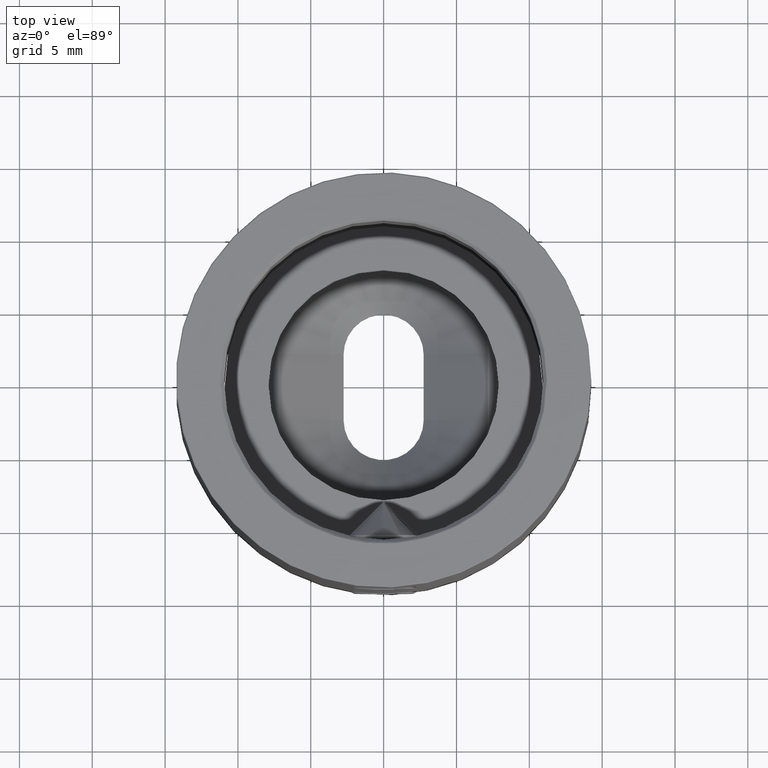
[diagram: clean part render]
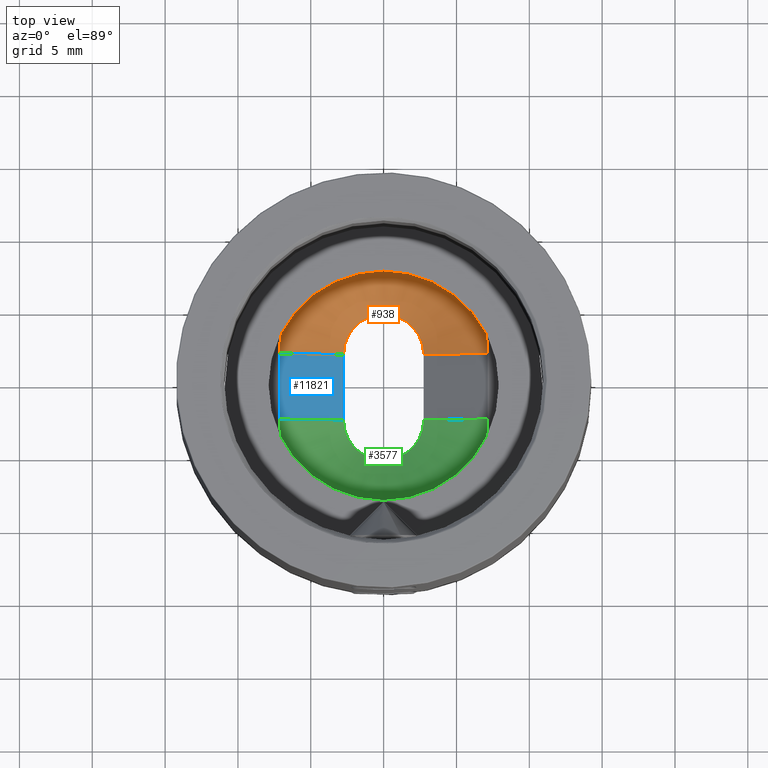
[diagram: same view with three faces highlighted in distinct colors, each labeled with its STEP entity id]
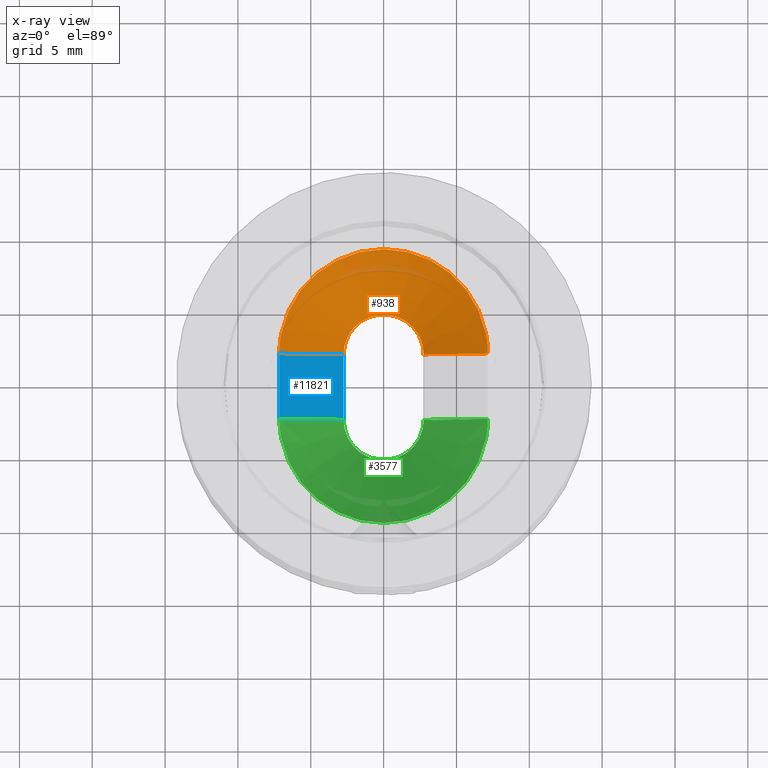
[diagram: x-ray of the same camera — body ghosted, the three highlighted faces saturated]
A machine part, top view with three faces highlighted in distinct colors.
The next image is the same camera in x-ray (body ghosted, the three faces saturated) — at least one of them is partly hidden behind the body in this view.
Their STEP definitions:

[orange] entity #938 — the highlighted conical surface has half-angle 45 deg.
#111 = FACE_OUTER_BOUND ( 'NONE', #14790, .T. ) ;
#628 = CIRCLE ( 'NONE', #9543, 7.150000000000000355 ) ;
#938 = ADVANCED_FACE ( 'NONE', ( #111 ), #7051, .F. ) ;
#1121 = CARTESIAN_POINT ( 'NONE',  ( -3.659182332138577958E-16, 2.250000000000000444, 6.100000000000000533 ) ) ;
#1178 = ORIENTED_EDGE ( 'NONE', *, *, #13628, .T. ) ;
#1235 = DIRECTION ( 'NONE',  ( -0.000000000000000000, -0.000000000000000000, 1.000000000000000000 ) ) ;
#1693 = CIRCLE ( 'NONE', #8093, 7.150000000000000355 ) ;
#1723 = ORIENTED_EDGE ( 'NONE', *, *, #12745, .F. ) ;
#1754 = DIRECTION ( 'NONE',  ( 1.000000000000000000, 0.000000000000000000, 0.000000000000000000 ) ) ;
#1837 = VERTEX_POINT ( 'NONE', #14215 ) ;
#2367 = DIRECTION ( 'NONE',  ( -0.000000000000000000, -0.000000000000000000, 1.000000000000000000 ) ) ;
#2505 = VECTOR ( 'NONE', #8933, 1000.000000000000000 ) ;
#3434 = CARTESIAN_POINT ( 'NONE',  ( -7.014904766915149636, 3.633333333333333748, 6.100000000000000533 ) ) ;
#3438 = CARTESIAN_POINT ( 'NONE',  ( -3.659182332138577958E-16, 2.250000000000000444, 6.100000000000000533 ) ) ;
#3969 = VERTEX_POINT ( 'NONE', #6099 ) ;
#4426 = LINE ( 'NONE', #11788, #10954 ) ;
#5218 = CARTESIAN_POINT ( 'NONE',  ( -3.659182332138577958E-16, 2.250000000000000444, 6.100000000000000533 ) ) ;
#5816 = DIRECTION ( 'NONE',  ( 1.000000000000000000, 0.000000000000000000, 0.000000000000000000 ) ) ;
#5975 = ORIENTED_EDGE ( 'NONE', *, *, #10716, .F. ) ;
#6099 = CARTESIAN_POINT ( 'NONE',  ( 7.014904766915149636, 3.633333333333336412, 6.100000000000000533 ) ) ;
#6534 = DIRECTION ( 'NONE',  ( -0.000000000000000000, -0.000000000000000000, 1.000000000000000000 ) ) ;
#6740 = DIRECTION ( 'NONE',  ( 1.000000000000000000, 0.000000000000000000, 0.000000000000000000 ) ) ;
#6809 = AXIS2_PLACEMENT_3D ( 'NONE', #5218, #6534, #1754 ) ;
#7051 = CONICAL_SURFACE ( 'NONE', #15274, 7.150000000000000355, 0.7853981633974483900 ) ;
#7063 = DIRECTION ( 'NONE',  ( -0.000000000000000000, -0.000000000000000000, 1.000000000000000000 ) ) ;
#7308 = CARTESIAN_POINT ( 'NONE',  ( -2.750000000000000444, 2.250000000000000000, 1.700000000000000622 ) ) ;
#7335 = EDGE_CURVE ( 'NONE', #1837, #13031, #4426, .T. ) ;
#7920 = ORIENTED_EDGE ( 'NONE', *, *, #9660, .T. ) ;
#8063 = ORIENTED_EDGE ( 'NONE', *, *, #13315, .T. ) ;
#8093 = AXIS2_PLACEMENT_3D ( 'NONE', #3438, #7063, #5816 ) ;
#8534 = VERTEX_POINT ( 'NONE', #7308 ) ;
#8758 = VERTEX_POINT ( 'NONE', #3434 ) ;
#8933 = DIRECTION ( 'NONE',  ( -0.7071067811865475727, -1.152220493163240107E-16, 0.7071067811865474617 ) ) ;
#9543 = AXIS2_PLACEMENT_3D ( 'NONE', #1121, #2367, #11745 ) ;
#9635 = VERTEX_POINT ( 'NONE', #14102 ) ;
#9660 = EDGE_CURVE ( 'NONE', #3969, #8758, #628, .T. ) ;
#10251 = CARTESIAN_POINT ( 'NONE',  ( -3.659182332138577958E-16, 2.250000000000000444, -1.049999999999998934 ) ) ;
#10364 = DIRECTION ( 'NONE',  ( -0.000000000000000000, -0.000000000000000000, 1.000000000000000000 ) ) ;
#10670 = CIRCLE ( 'NONE', #6809, 7.150000000000000355 ) ;
#10716 = EDGE_CURVE ( 'NONE', #8534, #9635, #13323, .T. ) ;
#10954 = VECTOR ( 'NONE', #12943, 1000.000000000000000 ) ;
#11112 = CARTESIAN_POINT ( 'NONE',  ( 2.749999999999998668, 2.250000000000000888, 1.700000000000000178 ) ) ;
#11745 = DIRECTION ( 'NONE',  ( 1.000000000000000000, 0.000000000000000000, 0.000000000000000000 ) ) ;
#11788 = CARTESIAN_POINT ( 'NONE',  ( 2.749999999999998668, 2.250000000000000444, 1.700000000000000178 ) ) ;
#12745 = EDGE_CURVE ( 'NONE', #13031, #8534, #14617, .T. ) ;
#12938 = ORIENTED_EDGE ( 'NONE', *, *, #7335, .F. ) ;
#12943 = DIRECTION ( 'NONE',  ( -0.7071067811865475727, 0.000000000000000000, -0.7071067811865474617 ) ) ;
#12972 = DIRECTION ( 'NONE',  ( 1.000000000000000000, 0.000000000000000000, 0.000000000000000000 ) ) ;
#13031 = VERTEX_POINT ( 'NONE', #11112 ) ;
#13315 = EDGE_CURVE ( 'NONE', #1837, #3969, #10670, .T. ) ;
#13323 = LINE ( 'NONE', #10251, #2505 ) ;
#13628 = EDGE_CURVE ( 'NONE', #8758, #9635, #1693, .T. ) ;
#13763 = CARTESIAN_POINT ( 'NONE',  ( -3.659182332138577958E-16, 2.250000000000000444, 6.100000000000000533 ) ) ;
#13788 = AXIS2_PLACEMENT_3D ( 'NONE', #14397, #1235, #12972 ) ;
#14102 = CARTESIAN_POINT ( 'NONE',  ( -7.150000000000000355, 2.249999999999999112, 6.100000000000000533 ) ) ;
#14215 = CARTESIAN_POINT ( 'NONE',  ( 7.150000000000003908, 2.250000000000001332, 6.099999999999999645 ) ) ;
#14397 = CARTESIAN_POINT ( 'NONE',  ( -3.659182332138577958E-16, 2.250000000000000444, 1.700000000000000178 ) ) ;
#14617 = CIRCLE ( 'NONE', #13788, 2.749999999999999112 ) ;
#14790 = EDGE_LOOP ( 'NONE', ( #1723, #12938, #8063, #7920, #1178, #5975 ) ) ;
#15274 = AXIS2_PLACEMENT_3D ( 'NONE', #13763, #10364, #6740 ) ;

[blue] entity #11821 — the highlighted planar face has unit normal (-0.7071, -0, -0.7071).
#243 = VECTOR ( 'NONE', #14621, 1000.000000000000000 ) ;
#999 = AXIS2_PLACEMENT_3D ( 'NONE', #13070, #5947, #14279 ) ;
#2505 = VECTOR ( 'NONE', #8933, 1000.000000000000000 ) ;
#2829 = CARTESIAN_POINT ( 'NONE',  ( 3.659182332138577958E-16, -2.250000000000000444, -1.049999999999998934 ) ) ;
#3546 = VECTOR ( 'NONE', #14600, 1000.000000000000000 ) ;
#3976 = CARTESIAN_POINT ( 'NONE',  ( -2.749999999999998668, -2.250000000000000888, 1.700000000000000178 ) ) ;
#4896 = VECTOR ( 'NONE', #14718, 1000.000000000000000 ) ;
#4944 = CARTESIAN_POINT ( 'NONE',  ( -7.149999999999999467, -2.250000000000001776, 6.100000000000000533 ) ) ;
#5935 = ORIENTED_EDGE ( 'NONE', *, *, #9919, .T. ) ;
#5947 = DIRECTION ( 'NONE',  ( -0.7071067811865474617, -1.149970062512530480E-16, -0.7071067811865475727 ) ) ;
#6734 = LINE ( 'NONE', #4944, #3546 ) ;
#7308 = CARTESIAN_POINT ( 'NONE',  ( -2.750000000000000444, 2.250000000000000000, 1.700000000000000622 ) ) ;
#8455 = EDGE_LOOP ( 'NONE', ( #15008, #9756, #5935, #12863 ) ) ;
#8534 = VERTEX_POINT ( 'NONE', #7308 ) ;
#8933 = DIRECTION ( 'NONE',  ( -0.7071067811865475727, -1.152220493163240107E-16, 0.7071067811865474617 ) ) ;
#9635 = VERTEX_POINT ( 'NONE', #14102 ) ;
#9756 = ORIENTED_EDGE ( 'NONE', *, *, #15370, .F. ) ;
#9919 = EDGE_CURVE ( 'NONE', #10264, #10543, #15211, .T. ) ;
#10063 = CARTESIAN_POINT ( 'NONE',  ( -2.749999999999999556, -2.250000000000000888, 1.700000000000000622 ) ) ;
#10251 = CARTESIAN_POINT ( 'NONE',  ( -3.659182332138577958E-16, 2.250000000000000444, -1.049999999999998934 ) ) ;
#10264 = VERTEX_POINT ( 'NONE', #14024 ) ;
#10543 = VERTEX_POINT ( 'NONE', #3976 ) ;
#10716 = EDGE_CURVE ( 'NONE', #8534, #9635, #13323, .T. ) ;
#11821 = ADVANCED_FACE ( 'NONE', ( #14447 ), #11851, .F. ) ;
#11851 = PLANE ( 'NONE',  #999 ) ;
#12863 = ORIENTED_EDGE ( 'NONE', *, *, #13427, .T. ) ;
#13070 = CARTESIAN_POINT ( 'NONE',  ( 3.659182332138577958E-16, -2.250000000000000444, -1.049999999999998934 ) ) ;
#13323 = LINE ( 'NONE', #10251, #2505 ) ;
#13427 = EDGE_CURVE ( 'NONE', #10543, #8534, #14963, .T. ) ;
#14024 = CARTESIAN_POINT ( 'NONE',  ( -7.150000000000003908, -2.250000000000001332, 6.099999999999999645 ) ) ;
#14102 = CARTESIAN_POINT ( 'NONE',  ( -7.150000000000000355, 2.249999999999999112, 6.100000000000000533 ) ) ;
#14279 = DIRECTION ( 'NONE',  ( -0.7071067811865475727, 0.000000000000000000, 0.7071067811865474617 ) ) ;
#14447 = FACE_OUTER_BOUND ( 'NONE', #8455, .T. ) ;
#14600 = DIRECTION ( 'NONE',  ( -1.626303258728256651E-16, 1.000000000000000000, -0.000000000000000000 ) ) ;
#14621 = DIRECTION ( 'NONE',  ( 0.7071067811865475727, 1.152220493163240107E-16, -0.7071067811865474617 ) ) ;
#14718 = DIRECTION ( 'NONE',  ( -1.626303258728256651E-16, 1.000000000000000000, -0.000000000000000000 ) ) ;
#14963 = LINE ( 'NONE', #10063, #4896 ) ;
#15008 = ORIENTED_EDGE ( 'NONE', *, *, #10716, .T. ) ;
#15211 = LINE ( 'NONE', #2829, #243 ) ;
#15370 = EDGE_CURVE ( 'NONE', #10264, #9635, #6734, .T. ) ;

[green] entity #3577 — the highlighted conical surface has half-angle 45 deg.
#91 = CARTESIAN_POINT ( 'NONE',  ( 2.749999999999999556, -2.250000000000000000, 1.700000000000000178 ) ) ;
#243 = VECTOR ( 'NONE', #14621, 1000.000000000000000 ) ;
#1107 = VERTEX_POINT ( 'NONE', #14300 ) ;
#1110 = AXIS2_PLACEMENT_3D ( 'NONE', #12444, #2732, #5466 ) ;
#1467 = ORIENTED_EDGE ( 'NONE', *, *, #11520, .F. ) ;
#1690 = DIRECTION ( 'NONE',  ( -0.000000000000000000, -0.000000000000000000, 1.000000000000000000 ) ) ;
#2699 = EDGE_CURVE ( 'NONE', #6658, #9047, #10911, .T. ) ;
#2732 = DIRECTION ( 'NONE',  ( -0.000000000000000000, -0.000000000000000000, 1.000000000000000000 ) ) ;
#2829 = CARTESIAN_POINT ( 'NONE',  ( 3.659182332138577958E-16, -2.250000000000000444, -1.049999999999998934 ) ) ;
#3140 = ORIENTED_EDGE ( 'NONE', *, *, #2699, .T. ) ;
#3269 = VERTEX_POINT ( 'NONE', #91 ) ;
#3536 = DIRECTION ( 'NONE',  ( -0.000000000000000000, -0.000000000000000000, 1.000000000000000000 ) ) ;
#3577 = ADVANCED_FACE ( 'NONE', ( #5699 ), #4273, .F. ) ;
#3950 = CARTESIAN_POINT ( 'NONE',  ( 3.659182332138577958E-16, -2.250000000000000444, 6.100000000000000533 ) ) ;
#3976 = CARTESIAN_POINT ( 'NONE',  ( -2.749999999999998668, -2.250000000000000888, 1.700000000000000178 ) ) ;
#4273 = CONICAL_SURFACE ( 'NONE', #1110, 7.150000000000000355, 0.7853981633974483900 ) ;
#4517 = EDGE_CURVE ( 'NONE', #1107, #3269, #11178, .T. ) ;
#4705 = CARTESIAN_POINT ( 'NONE',  ( -7.014904766915149636, -3.633333333333336412, 6.100000000000000533 ) ) ;
#5227 = CARTESIAN_POINT ( 'NONE',  ( 2.749999999999999556, -2.250000000000000444, 1.700000000000000178 ) ) ;
#5440 = CARTESIAN_POINT ( 'NONE',  ( 3.659182332138577958E-16, -2.250000000000000444, 6.100000000000000533 ) ) ;
#5466 = DIRECTION ( 'NONE',  ( 1.000000000000000000, 0.000000000000000000, 0.000000000000000000 ) ) ;
#5596 = AXIS2_PLACEMENT_3D ( 'NONE', #5440, #12681, #8094 ) ;
#5699 = FACE_OUTER_BOUND ( 'NONE', #6267, .T. ) ;
#5899 = ORIENTED_EDGE ( 'NONE', *, *, #9919, .F. ) ;
#6267 = EDGE_LOOP ( 'NONE', ( #9249, #3140, #8980, #9886, #1467, #5899 ) ) ;
#6299 = AXIS2_PLACEMENT_3D ( 'NONE', #3950, #11153, #11412 ) ;
#6396 = AXIS2_PLACEMENT_3D ( 'NONE', #9347, #3536, #15499 ) ;
#6658 = VERTEX_POINT ( 'NONE', #4705 ) ;
#7490 = CARTESIAN_POINT ( 'NONE',  ( 7.014904766915149636, -3.633333333333334636, 6.100000000000000533 ) ) ;
#8094 = DIRECTION ( 'NONE',  ( 1.000000000000000000, 0.000000000000000000, 0.000000000000000000 ) ) ;
#8980 = ORIENTED_EDGE ( 'NONE', *, *, #11706, .T. ) ;
#9047 = VERTEX_POINT ( 'NONE', #7490 ) ;
#9249 = ORIENTED_EDGE ( 'NONE', *, *, #12325, .T. ) ;
#9347 = CARTESIAN_POINT ( 'NONE',  ( 3.659182332138577958E-16, -2.250000000000000444, 6.100000000000000533 ) ) ;
#9886 = ORIENTED_EDGE ( 'NONE', *, *, #4517, .T. ) ;
#9919 = EDGE_CURVE ( 'NONE', #10264, #10543, #15211, .T. ) ;
#10051 = DIRECTION ( 'NONE',  ( 1.000000000000000000, 0.000000000000000000, 0.000000000000000000 ) ) ;
#10119 = CIRCLE ( 'NONE', #6396, 7.150000000000000355 ) ;
#10264 = VERTEX_POINT ( 'NONE', #14024 ) ;
#10504 = CIRCLE ( 'NONE', #12779, 2.749999999999999112 ) ;
#10543 = VERTEX_POINT ( 'NONE', #3976 ) ;
#10911 = CIRCLE ( 'NONE', #6299, 7.150000000000000355 ) ;
#11153 = DIRECTION ( 'NONE',  ( -0.000000000000000000, -0.000000000000000000, 1.000000000000000000 ) ) ;
#11178 = LINE ( 'NONE', #5227, #13807 ) ;
#11239 = CARTESIAN_POINT ( 'NONE',  ( 3.659182332138577958E-16, -2.250000000000000444, 1.700000000000000178 ) ) ;
#11412 = DIRECTION ( 'NONE',  ( 1.000000000000000000, 0.000000000000000000, 0.000000000000000000 ) ) ;
#11520 = EDGE_CURVE ( 'NONE', #10543, #3269, #10504, .T. ) ;
#11706 = EDGE_CURVE ( 'NONE', #9047, #1107, #11818, .T. ) ;
#11818 = CIRCLE ( 'NONE', #5596, 7.150000000000000355 ) ;
#12325 = EDGE_CURVE ( 'NONE', #10264, #6658, #10119, .T. ) ;
#12444 = CARTESIAN_POINT ( 'NONE',  ( 3.659182332138577958E-16, -2.250000000000000444, 6.100000000000000533 ) ) ;
#12681 = DIRECTION ( 'NONE',  ( -0.000000000000000000, -0.000000000000000000, 1.000000000000000000 ) ) ;
#12779 = AXIS2_PLACEMENT_3D ( 'NONE', #11239, #1690, #10051 ) ;
#13580 = DIRECTION ( 'NONE',  ( -0.7071067811865475727, 0.000000000000000000, -0.7071067811865474617 ) ) ;
#13807 = VECTOR ( 'NONE', #13580, 1000.000000000000000 ) ;
#14024 = CARTESIAN_POINT ( 'NONE',  ( -7.150000000000003908, -2.250000000000001332, 6.099999999999999645 ) ) ;
#14300 = CARTESIAN_POINT ( 'NONE',  ( 7.150000000000000355, -2.250000000000000444, 6.100000000000000533 ) ) ;
#14621 = DIRECTION ( 'NONE',  ( 0.7071067811865475727, 1.152220493163240107E-16, -0.7071067811865474617 ) ) ;
#15211 = LINE ( 'NONE', #2829, #243 ) ;
#15499 = DIRECTION ( 'NONE',  ( 1.000000000000000000, 0.000000000000000000, 0.000000000000000000 ) ) ;